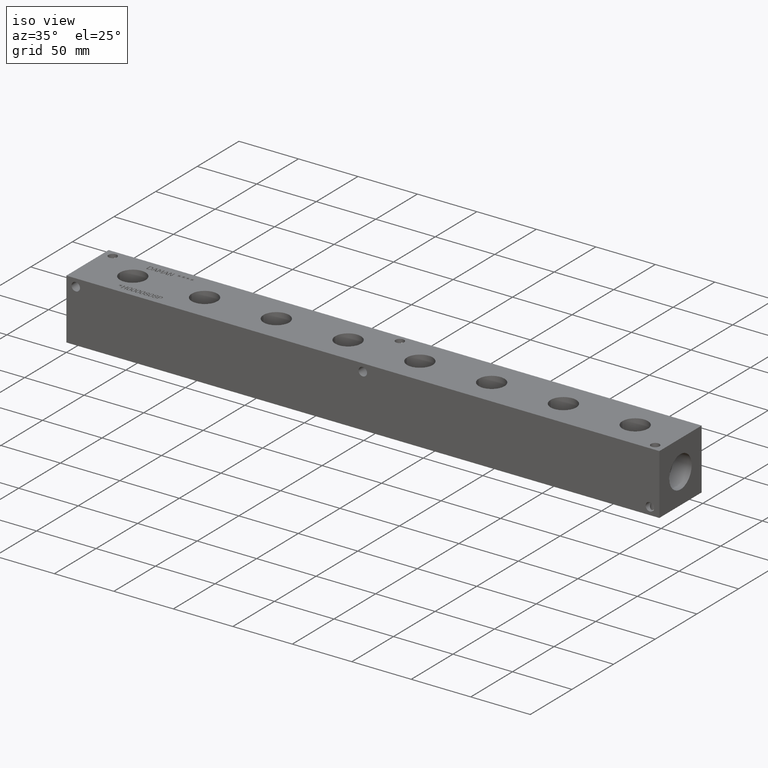
[diagram: clean part render]
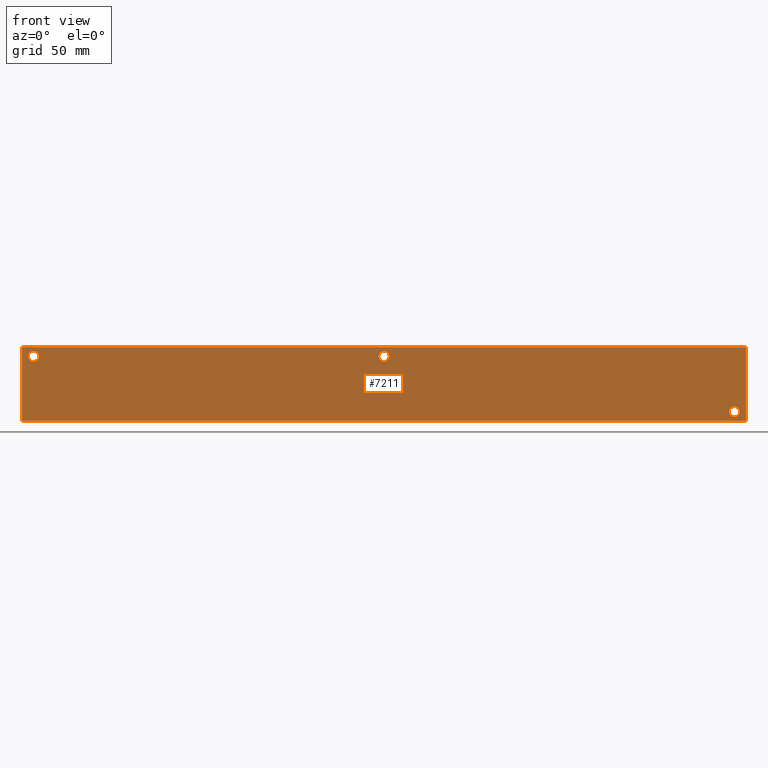
[diagram: tour spotlight — one face highlighted and labeled with its STEP entity id]
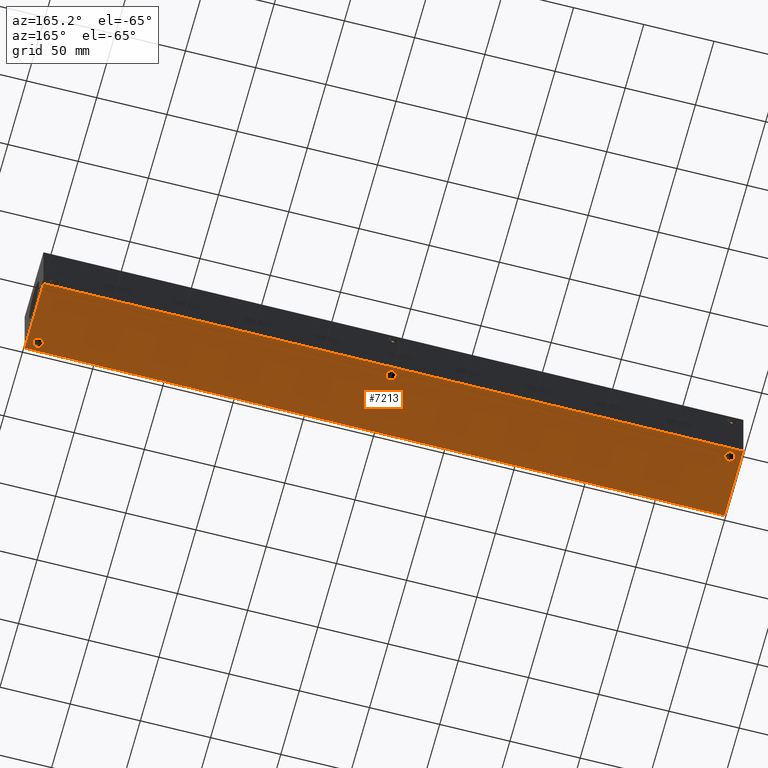
[diagram: tour spotlight — one face highlighted and labeled with its STEP entity id]
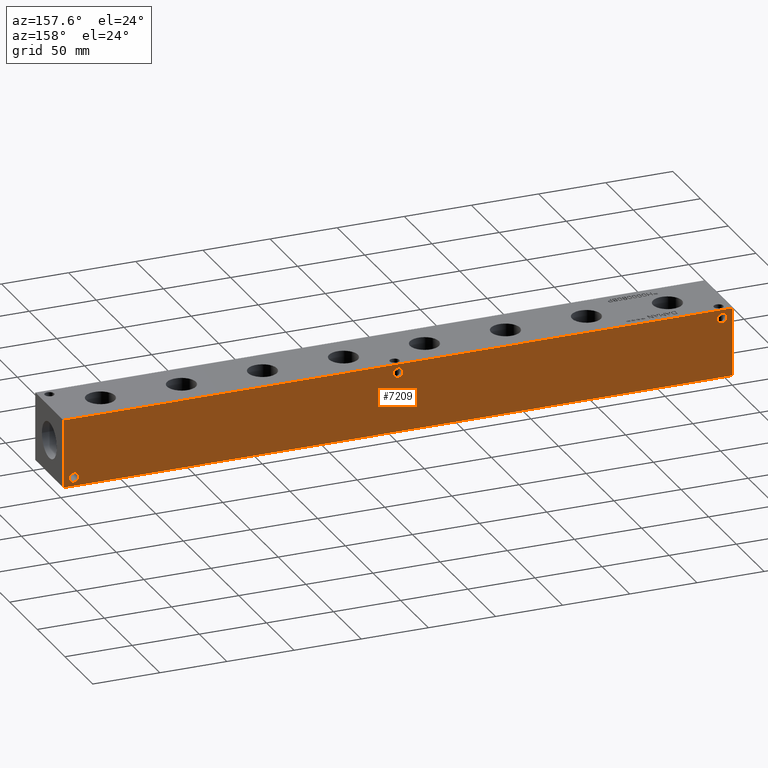
[diagram: tour spotlight — one face highlighted and labeled with its STEP entity id]
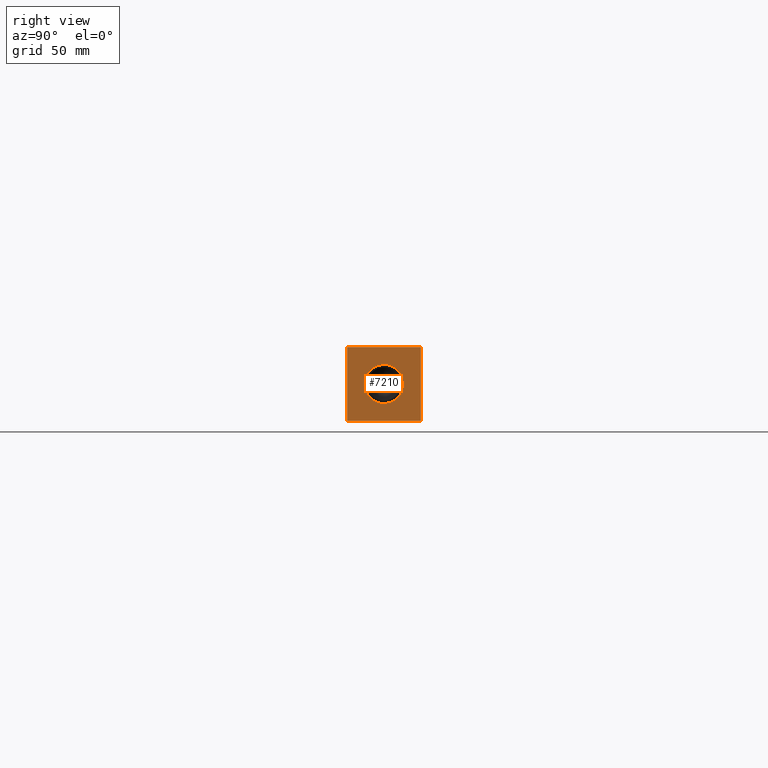
[diagram: tour spotlight — one face highlighted and labeled with its STEP entity id]
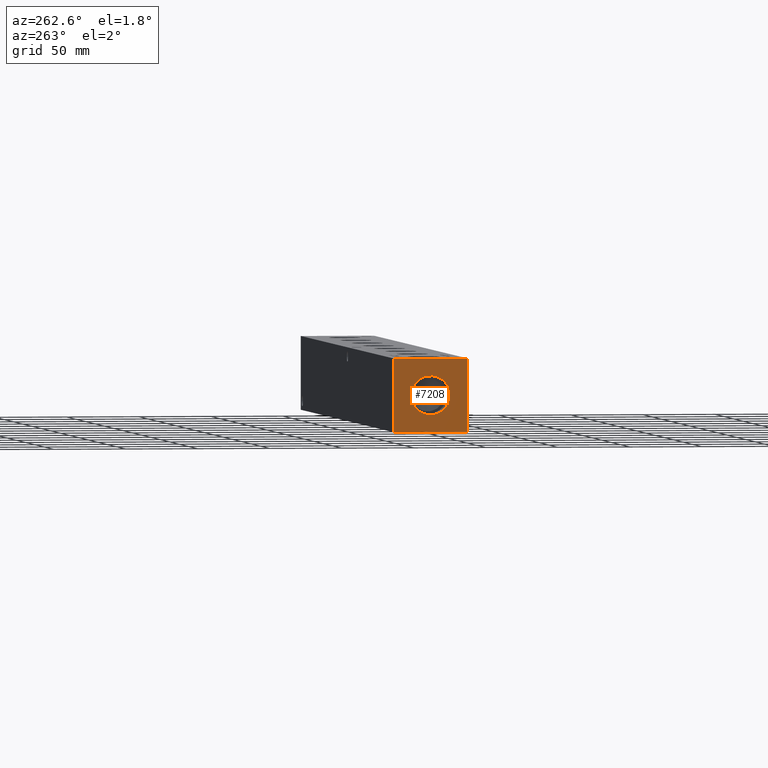
[diagram: tour spotlight — one face highlighted and labeled with its STEP entity id]
A machine part: a face-by-face anatomy tour. The part has 369 B-rep faces; the first image is the clean iso view, then the 5 largest visible faces are spotlighted one at a time (largest first), each with its STEP entity span.

Face 1 — front view, entity #7211. In plain terms, the highlighted planar face has unit normal (0, -1, 0).
Definition (entity closure, byte-faithful):
#90=CIRCLE('',#7448,3.5687);
#91=CIRCLE('',#7449,3.5687);
#93=CIRCLE('',#7458,3.5687);
#94=CIRCLE('',#7459,3.5687);
#96=CIRCLE('',#7467,3.5687);
#97=CIRCLE('',#7468,3.5687);
#214=FACE_BOUND('',#1227,.T.);
#215=FACE_BOUND('',#1228,.T.);
#216=FACE_BOUND('',#1229,.T.);
#430=PLANE('',#7580);
#799=FACE_OUTER_BOUND('',#1226,.T.);
#1226=EDGE_LOOP('',(#6412,#6413,#6414,#6415));
#1227=EDGE_LOOP('',(#6416,#6417));
#1228=EDGE_LOOP('',(#6418,#6419));
#1229=EDGE_LOOP('',(#6420,#6421));
#1467=LINE('',#11238,#2130);
#1891=LINE('',#12457,#2554);
#1896=LINE('',#12466,#2559);
#1897=LINE('',#12468,#2560);
#2130=VECTOR('',#7923,10.);
#2554=VECTOR('',#8941,10.);
#2559=VECTOR('',#8950,10.);
#2560=VECTOR('',#8953,10.);
#3085=VERTEX_POINT('',#11236);
#3086=VERTEX_POINT('',#11237);
#3373=VERTEX_POINT('',#12200);
#3374=VERTEX_POINT('',#12201);
#3378=VERTEX_POINT('',#12218);
#3379=VERTEX_POINT('',#12219);
#3383=VERTEX_POINT('',#12234);
#3384=VERTEX_POINT('',#12235);
#3456=VERTEX_POINT('',#12455);
#3458=VERTEX_POINT('',#12464);
#3903=EDGE_CURVE('',#3085,#3086,#1467,.T.);
#4322=EDGE_CURVE('',#3373,#3374,#90,.T.);
#4323=EDGE_CURVE('',#3374,#3373,#91,.T.);
#4332=EDGE_CURVE('',#3378,#3379,#93,.T.);
#4333=EDGE_CURVE('',#3379,#3378,#94,.T.);
#4341=EDGE_CURVE('',#3383,#3384,#96,.T.);
#4342=EDGE_CURVE('',#3384,#3383,#97,.T.);
#4443=EDGE_CURVE('',#3456,#3085,#1891,.T.);
#4448=EDGE_CURVE('',#3458,#3086,#1896,.T.);
#4449=EDGE_CURVE('',#3456,#3458,#1897,.T.);
#6412=ORIENTED_EDGE('',*,*,#4449,.T.);
#6413=ORIENTED_EDGE('',*,*,#4448,.T.);
#6414=ORIENTED_EDGE('',*,*,#3903,.F.);
#6415=ORIENTED_EDGE('',*,*,#4443,.F.);
#6416=ORIENTED_EDGE('',*,*,#4322,.T.);
#6417=ORIENTED_EDGE('',*,*,#4323,.T.);
#6418=ORIENTED_EDGE('',*,*,#4332,.T.);
#6419=ORIENTED_EDGE('',*,*,#4333,.T.);
#6420=ORIENTED_EDGE('',*,*,#4341,.T.);
#6421=ORIENTED_EDGE('',*,*,#4342,.T.);
#7211=ADVANCED_FACE('',(#799,#214,#215,#216),#430,.T.);
#7448=AXIS2_PLACEMENT_3D('',#12202,#8638,#8639);
#7449=AXIS2_PLACEMENT_3D('',#12203,#8640,#8641);
#7458=AXIS2_PLACEMENT_3D('',#12220,#8661,#8662);
#7459=AXIS2_PLACEMENT_3D('',#12221,#8663,#8664);
#7467=AXIS2_PLACEMENT_3D('',#12236,#8681,#8682);
#7468=AXIS2_PLACEMENT_3D('',#12237,#8683,#8684);
#7580=AXIS2_PLACEMENT_3D('',#12467,#8951,#8952);
#7923=DIRECTION('',(1.,0.,0.));
#8638=DIRECTION('center_axis',(0.,1.,0.));
#8639=DIRECTION('ref_axis',(1.,0.,0.));
#8640=DIRECTION('center_axis',(0.,1.,0.));
#8641=DIRECTION('ref_axis',(1.,0.,0.));
#8661=DIRECTION('center_axis',(0.,1.,0.));
#8662=DIRECTION('ref_axis',(1.,0.,0.));
#8663=DIRECTION('center_axis',(0.,1.,0.));
#8664=DIRECTION('ref_axis',(1.,0.,0.));
#8681=DIRECTION('center_axis',(0.,1.,0.));
#8682=DIRECTION('ref_axis',(1.,0.,0.));
#8683=DIRECTION('center_axis',(0.,1.,0.));
#8684=DIRECTION('ref_axis',(1.,0.,0.));
#8941=DIRECTION('',(0.,0.,1.));
#8950=DIRECTION('',(0.,0.,1.));
#8951=DIRECTION('center_axis',(0.,-1.,0.));
#8952=DIRECTION('ref_axis',(1.,0.,0.));
#8953=DIRECTION('',(1.,0.,0.));
#11236=CARTESIAN_POINT('',(0.,0.,50.8));
#11237=CARTESIAN_POINT('',(498.475,0.,50.8));
#11238=CARTESIAN_POINT('',(0.,0.,50.8));
#12200=CARTESIAN_POINT('',(494.0935,0.,6.35));
#12201=CARTESIAN_POINT('',(486.9561,0.,6.35));
#12202=CARTESIAN_POINT('Origin',(490.5248,0.,6.35));
#12203=CARTESIAN_POINT('Origin',(490.5248,0.,6.35));
#12218=CARTESIAN_POINT('',(11.4935,0.,44.45));
#12219=CARTESIAN_POINT('',(4.3561,0.,44.45));
#12220=CARTESIAN_POINT('Origin',(7.9248,0.,44.45));
#12221=CARTESIAN_POINT('Origin',(7.9248,0.,44.45));
#12234=CARTESIAN_POINT('',(252.7935,0.,44.45));
#12235=CARTESIAN_POINT('',(245.6561,0.,44.45));
#12236=CARTESIAN_POINT('Origin',(249.2248,0.,44.45));
#12237=CARTESIAN_POINT('Origin',(249.2248,0.,44.45));
#12455=CARTESIAN_POINT('',(0.,0.,0.));
#12457=CARTESIAN_POINT('',(0.,0.,0.));
#12464=CARTESIAN_POINT('',(498.475,0.,0.));
#12466=CARTESIAN_POINT('',(498.475,0.,0.));
#12467=CARTESIAN_POINT('Origin',(0.,0.,0.));
#12468=CARTESIAN_POINT('',(0.,0.,0.));

Face 2 — auxiliary view, entity #7213. In plain terms, the highlighted planar face has unit normal (0, 0, 1).
Definition (entity closure, byte-faithful):
#99=CIRCLE('',#7478,3.5687);
#100=CIRCLE('',#7480,3.5687);
#101=CIRCLE('',#7482,3.5687);
#217=FACE_BOUND('',#1232,.T.);
#218=FACE_BOUND('',#1233,.T.);
#219=FACE_BOUND('',#1234,.T.);
#432=PLANE('',#7582);
#801=FACE_OUTER_BOUND('',#1231,.T.);
#1231=EDGE_LOOP('',(#6425,#6426,#6427,#6428));
#1232=EDGE_LOOP('',(#6429));
#1233=EDGE_LOOP('',(#6430));
#1234=EDGE_LOOP('',(#6431));
#1890=LINE('',#12456,#2553);
#1893=LINE('',#12461,#2556);
#1895=LINE('',#12465,#2558);
#1897=LINE('',#12468,#2560);
#2553=VECTOR('',#8940,10.);
#2556=VECTOR('',#8945,10.);
#2558=VECTOR('',#8949,10.);
#2560=VECTOR('',#8953,10.);
#3388=VERTEX_POINT('',#12254);
#3389=VERTEX_POINT('',#12258);
#3390=VERTEX_POINT('',#12262);
#3455=VERTEX_POINT('',#12454);
#3456=VERTEX_POINT('',#12455);
#3457=VERTEX_POINT('',#12460);
#3458=VERTEX_POINT('',#12464);
#4353=EDGE_CURVE('',#3388,#3388,#99,.T.);
#4355=EDGE_CURVE('',#3389,#3389,#100,.T.);
#4357=EDGE_CURVE('',#3390,#3390,#101,.T.);
#4442=EDGE_CURVE('',#3455,#3456,#1890,.T.);
#4445=EDGE_CURVE('',#3457,#3455,#1893,.T.);
#4447=EDGE_CURVE('',#3458,#3457,#1895,.T.);
#4449=EDGE_CURVE('',#3456,#3458,#1897,.T.);
#6425=ORIENTED_EDGE('',*,*,#4449,.F.);
#6426=ORIENTED_EDGE('',*,*,#4442,.F.);
#6427=ORIENTED_EDGE('',*,*,#4445,.F.);
#6428=ORIENTED_EDGE('',*,*,#4447,.F.);
#6429=ORIENTED_EDGE('',*,*,#4353,.T.);
#6430=ORIENTED_EDGE('',*,*,#4355,.T.);
#6431=ORIENTED_EDGE('',*,*,#4357,.T.);
#7213=ADVANCED_FACE('',(#801,#217,#218,#219),#432,.F.);
#7478=AXIS2_PLACEMENT_3D('',#12256,#8708,#8709);
#7480=AXIS2_PLACEMENT_3D('',#12260,#8713,#8714);
#7482=AXIS2_PLACEMENT_3D('',#12264,#8718,#8719);
#7582=AXIS2_PLACEMENT_3D('',#12470,#8956,#8957);
#8708=DIRECTION('center_axis',(0.,0.,1.));
#8709=DIRECTION('ref_axis',(1.,0.,0.));
#8713=DIRECTION('center_axis',(0.,0.,1.));
#8714=DIRECTION('ref_axis',(1.,0.,0.));
#8718=DIRECTION('center_axis',(0.,0.,1.));
#8719=DIRECTION('ref_axis',(1.,0.,0.));
#8940=DIRECTION('',(0.,-1.,0.));
#8945=DIRECTION('',(-1.,0.,0.));
#8949=DIRECTION('',(0.,1.,0.));
#8953=DIRECTION('',(1.,0.,0.));
#8956=DIRECTION('center_axis',(0.,0.,1.));
#8957=DIRECTION('ref_axis',(1.,0.,0.));
#12254=CARTESIAN_POINT('',(486.9561,6.35,0.));
#12256=CARTESIAN_POINT('Origin',(490.5248,6.35,0.));
#12258=CARTESIAN_POINT('',(4.3561,44.45,0.));
#12260=CARTESIAN_POINT('Origin',(7.9248,44.45,0.));
#12262=CARTESIAN_POINT('',(245.6561,44.45,0.));
#12264=CARTESIAN_POINT('Origin',(249.2248,44.45,0.));
#12454=CARTESIAN_POINT('',(0.,50.8,0.));
#12455=CARTESIAN_POINT('',(0.,0.,0.));
#12456=CARTESIAN_POINT('',(0.,50.8,0.));
#12460=CARTESIAN_POINT('',(498.475,50.8,0.));
#12461=CARTESIAN_POINT('',(498.475,50.8,0.));
#12464=CARTESIAN_POINT('',(498.475,0.,0.));
#12465=CARTESIAN_POINT('',(498.475,0.,0.));
#12468=CARTESIAN_POINT('',(0.,0.,0.));
#12470=CARTESIAN_POINT('Origin',(249.2375,25.4,0.));

Face 3 — auxiliary view, entity #7209. In plain terms, the highlighted planar face has unit normal (0, 1, 0).
Definition (entity closure, byte-faithful):
#92=CIRCLE('',#7455,3.5687);
#95=CIRCLE('',#7465,3.5687);
#98=CIRCLE('',#7474,3.5687);
#210=FACE_BOUND('',#1221,.T.);
#211=FACE_BOUND('',#1222,.T.);
#212=FACE_BOUND('',#1223,.T.);
#428=PLANE('',#7578);
#797=FACE_OUTER_BOUND('',#1220,.T.);
#1220=EDGE_LOOP('',(#6399,#6400,#6401,#6402));
#1221=EDGE_LOOP('',(#6403));
#1222=EDGE_LOOP('',(#6404));
#1223=EDGE_LOOP('',(#6405));
#1469=LINE('',#11242,#2132);
#1892=LINE('',#12458,#2555);
#1893=LINE('',#12461,#2556);
#1894=LINE('',#12462,#2557);
#2132=VECTOR('',#7925,10.);
#2555=VECTOR('',#8942,10.);
#2556=VECTOR('',#8945,10.);
#2557=VECTOR('',#8946,10.);
#3087=VERTEX_POINT('',#11239);
#3088=VERTEX_POINT('',#11241);
#3377=VERTEX_POINT('',#12212);
#3382=VERTEX_POINT('',#12230);
#3387=VERTEX_POINT('',#12246);
#3455=VERTEX_POINT('',#12454);
#3457=VERTEX_POINT('',#12460);
#3905=EDGE_CURVE('',#3087,#3088,#1469,.T.);
#4330=EDGE_CURVE('',#3377,#3377,#92,.T.);
#4340=EDGE_CURVE('',#3382,#3382,#95,.T.);
#4349=EDGE_CURVE('',#3387,#3387,#98,.T.);
#4444=EDGE_CURVE('',#3455,#3088,#1892,.T.);
#4445=EDGE_CURVE('',#3457,#3455,#1893,.T.);
#4446=EDGE_CURVE('',#3457,#3087,#1894,.T.);
#6399=ORIENTED_EDGE('',*,*,#4445,.T.);
#6400=ORIENTED_EDGE('',*,*,#4444,.T.);
#6401=ORIENTED_EDGE('',*,*,#3905,.F.);
#6402=ORIENTED_EDGE('',*,*,#4446,.F.);
#6403=ORIENTED_EDGE('',*,*,#4330,.T.);
#6404=ORIENTED_EDGE('',*,*,#4340,.T.);
#6405=ORIENTED_EDGE('',*,*,#4349,.T.);
#7209=ADVANCED_FACE('',(#797,#210,#211,#212),#428,.T.);
#7455=AXIS2_PLACEMENT_3D('',#12214,#8654,#8655);
#7465=AXIS2_PLACEMENT_3D('',#12232,#8677,#8678);
#7474=AXIS2_PLACEMENT_3D('',#12248,#8697,#8698);
#7578=AXIS2_PLACEMENT_3D('',#12459,#8943,#8944);
#7925=DIRECTION('',(-1.,0.,0.));
#8654=DIRECTION('center_axis',(0.,-1.,0.));
#8655=DIRECTION('ref_axis',(1.,0.,0.));
#8677=DIRECTION('center_axis',(0.,-1.,0.));
#8678=DIRECTION('ref_axis',(1.,0.,0.));
#8697=DIRECTION('center_axis',(0.,-1.,0.));
#8698=DIRECTION('ref_axis',(1.,0.,0.));
#8942=DIRECTION('',(0.,0.,1.));
#8943=DIRECTION('center_axis',(0.,1.,0.));
#8944=DIRECTION('ref_axis',(-1.,0.,0.));
#8945=DIRECTION('',(-1.,0.,0.));
#8946=DIRECTION('',(0.,0.,1.));
#11239=CARTESIAN_POINT('',(498.475,50.8,50.8));
#11241=CARTESIAN_POINT('',(0.,50.8,50.8));
#11242=CARTESIAN_POINT('',(498.475,50.8,50.8));
#12212=CARTESIAN_POINT('',(486.9561,50.8,6.35));
#12214=CARTESIAN_POINT('Origin',(490.5248,50.8,6.35));
#12230=CARTESIAN_POINT('',(4.3561,50.8,44.45));
#12232=CARTESIAN_POINT('Origin',(7.9248,50.8,44.45));
#12246=CARTESIAN_POINT('',(245.6561,50.8,44.45));
#12248=CARTESIAN_POINT('Origin',(249.2248,50.8,44.45));
#12454=CARTESIAN_POINT('',(0.,50.8,0.));
#12458=CARTESIAN_POINT('',(0.,50.8,0.));
#12459=CARTESIAN_POINT('Origin',(498.475,50.8,0.));
#12460=CARTESIAN_POINT('',(498.475,50.8,0.));
#12461=CARTESIAN_POINT('',(498.475,50.8,0.));
#12462=CARTESIAN_POINT('',(498.475,50.8,0.));

Face 4 — right view, entity #7210. In plain terms, the highlighted planar face has unit normal (1, 0, 0).
Definition (entity closure, byte-faithful):
#147=CIRCLE('',#7563,13.462);
#148=CIRCLE('',#7564,13.462);
#213=FACE_BOUND('',#1225,.T.);
#429=PLANE('',#7579);
#798=FACE_OUTER_BOUND('',#1224,.T.);
#1224=EDGE_LOOP('',(#6406,#6407,#6408,#6409));
#1225=EDGE_LOOP('',(#6410,#6411));
#1468=LINE('',#11240,#2131);
#1894=LINE('',#12462,#2557);
#1895=LINE('',#12465,#2558);
#1896=LINE('',#12466,#2559);
#2131=VECTOR('',#7924,10.);
#2557=VECTOR('',#8946,10.);
#2558=VECTOR('',#8949,10.);
#2559=VECTOR('',#8950,10.);
#3086=VERTEX_POINT('',#11237);
#3087=VERTEX_POINT('',#11239);
#3445=VERTEX_POINT('',#12424);
#3446=VERTEX_POINT('',#12425);
#3457=VERTEX_POINT('',#12460);
#3458=VERTEX_POINT('',#12464);
#3904=EDGE_CURVE('',#3086,#3087,#1468,.T.);
#4428=EDGE_CURVE('',#3445,#3446,#147,.T.);
#4429=EDGE_CURVE('',#3446,#3445,#148,.T.);
#4446=EDGE_CURVE('',#3457,#3087,#1894,.T.);
#4447=EDGE_CURVE('',#3458,#3457,#1895,.T.);
#4448=EDGE_CURVE('',#3458,#3086,#1896,.T.);
#6406=ORIENTED_EDGE('',*,*,#4447,.T.);
#6407=ORIENTED_EDGE('',*,*,#4446,.T.);
#6408=ORIENTED_EDGE('',*,*,#3904,.F.);
#6409=ORIENTED_EDGE('',*,*,#4448,.F.);
#6410=ORIENTED_EDGE('',*,*,#4428,.T.);
#6411=ORIENTED_EDGE('',*,*,#4429,.T.);
#7210=ADVANCED_FACE('',(#798,#213),#429,.T.);
#7563=AXIS2_PLACEMENT_3D('',#12426,#8905,#8906);
#7564=AXIS2_PLACEMENT_3D('',#12427,#8907,#8908);
#7579=AXIS2_PLACEMENT_3D('',#12463,#8947,#8948);
#7924=DIRECTION('',(0.,1.,0.));
#8905=DIRECTION('center_axis',(-1.,0.,0.));
#8906=DIRECTION('ref_axis',(0.,1.,0.));
#8907=DIRECTION('center_axis',(-1.,0.,0.));
#8908=DIRECTION('ref_axis',(0.,1.,0.));
#8946=DIRECTION('',(0.,0.,1.));
#8947=DIRECTION('center_axis',(1.,0.,0.));
#8948=DIRECTION('ref_axis',(0.,1.,0.));
#8949=DIRECTION('',(0.,1.,0.));
#8950=DIRECTION('',(0.,0.,1.));
#11237=CARTESIAN_POINT('',(498.475,0.,50.8));
#11239=CARTESIAN_POINT('',(498.475,50.8,50.8));
#11240=CARTESIAN_POINT('',(498.475,0.,50.8));
#12424=CARTESIAN_POINT('',(498.475,38.862,25.4));
#12425=CARTESIAN_POINT('',(498.475,11.938,25.4));
#12426=CARTESIAN_POINT('Origin',(498.475,25.4,25.4));
#12427=CARTESIAN_POINT('Origin',(498.475,25.4,25.4));
#12460=CARTESIAN_POINT('',(498.475,50.8,0.));
#12462=CARTESIAN_POINT('',(498.475,50.8,0.));
#12463=CARTESIAN_POINT('Origin',(498.475,0.,0.));
#12464=CARTESIAN_POINT('',(498.475,0.,0.));
#12465=CARTESIAN_POINT('',(498.475,0.,0.));
#12466=CARTESIAN_POINT('',(498.475,0.,0.));

Face 5 — auxiliary view, entity #7208. In plain terms, the highlighted planar face has unit normal (-1, 0, 0).
Definition (entity closure, byte-faithful):
#154=CIRCLE('',#7574,13.462);
#155=CIRCLE('',#7575,13.462);
#209=FACE_BOUND('',#1219,.T.);
#427=PLANE('',#7577);
#796=FACE_OUTER_BOUND('',#1218,.T.);
#1218=EDGE_LOOP('',(#6393,#6394,#6395,#6396));
#1219=EDGE_LOOP('',(#6397,#6398));
#1470=LINE('',#11243,#2133);
#1890=LINE('',#12456,#2553);
#1891=LINE('',#12457,#2554);
#1892=LINE('',#12458,#2555);
#2133=VECTOR('',#7926,10.);
#2553=VECTOR('',#8940,10.);
#2554=VECTOR('',#8941,10.);
#2555=VECTOR('',#8942,10.);
#3085=VERTEX_POINT('',#11236);
#3088=VERTEX_POINT('',#11241);
#3453=VERTEX_POINT('',#12446);
#3454=VERTEX_POINT('',#12447);
#3455=VERTEX_POINT('',#12454);
#3456=VERTEX_POINT('',#12455);
#3906=EDGE_CURVE('',#3088,#3085,#1470,.T.);
#4438=EDGE_CURVE('',#3453,#3454,#154,.T.);
#4439=EDGE_CURVE('',#3454,#3453,#155,.T.);
#4442=EDGE_CURVE('',#3455,#3456,#1890,.T.);
#4443=EDGE_CURVE('',#3456,#3085,#1891,.T.);
#4444=EDGE_CURVE('',#3455,#3088,#1892,.T.);
#6393=ORIENTED_EDGE('',*,*,#4442,.T.);
#6394=ORIENTED_EDGE('',*,*,#4443,.T.);
#6395=ORIENTED_EDGE('',*,*,#3906,.F.);
#6396=ORIENTED_EDGE('',*,*,#4444,.F.);
#6397=ORIENTED_EDGE('',*,*,#4438,.T.);
#6398=ORIENTED_EDGE('',*,*,#4439,.T.);
#7208=ADVANCED_FACE('',(#796,#209),#427,.T.);
#7574=AXIS2_PLACEMENT_3D('',#12448,#8930,#8931);
#7575=AXIS2_PLACEMENT_3D('',#12449,#8932,#8933);
#7577=AXIS2_PLACEMENT_3D('',#12453,#8938,#8939);
#7926=DIRECTION('',(0.,-1.,0.));
#8930=DIRECTION('center_axis',(1.,0.,0.));
#8931=DIRECTION('ref_axis',(0.,1.,0.));
#8932=DIRECTION('center_axis',(1.,0.,0.));
#8933=DIRECTION('ref_axis',(0.,1.,0.));
#8938=DIRECTION('center_axis',(-1.,0.,0.));
#8939=DIRECTION('ref_axis',(0.,-1.,0.));
#8940=DIRECTION('',(0.,-1.,0.));
#8941=DIRECTION('',(0.,0.,1.));
#8942=DIRECTION('',(0.,0.,1.));
#11236=CARTESIAN_POINT('',(0.,0.,50.8));
#11241=CARTESIAN_POINT('',(0.,50.8,50.8));
#11243=CARTESIAN_POINT('',(0.,50.8,50.8));
#12446=CARTESIAN_POINT('',(0.,38.862,25.4));
#12447=CARTESIAN_POINT('',(1.11022302462516E-15,11.938,25.4));
#12448=CARTESIAN_POINT('Origin',(0.,25.4,25.4));
#12449=CARTESIAN_POINT('Origin',(0.,25.4,25.4));
#12453=CARTESIAN_POINT('Origin',(0.,50.8,0.));
#12454=CARTESIAN_POINT('',(0.,50.8,0.));
#12455=CARTESIAN_POINT('',(0.,0.,0.));
#12456=CARTESIAN_POINT('',(0.,50.8,0.));
#12457=CARTESIAN_POINT('',(0.,0.,0.));
#12458=CARTESIAN_POINT('',(0.,50.8,0.));